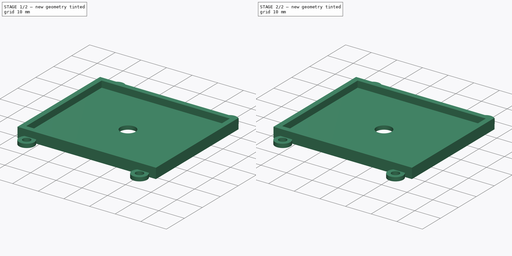
[diagram: build sequence overview — one tinted view per stage of 2, left to right]
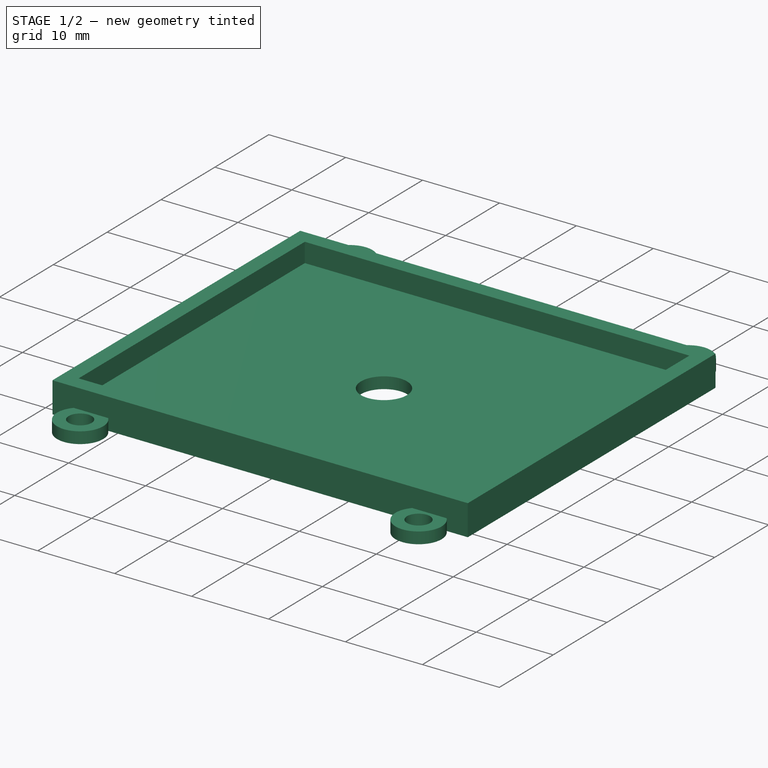
[diagram: stage 1 of 2 — iso view after this stage's code; geometry added in this stage tinted green]
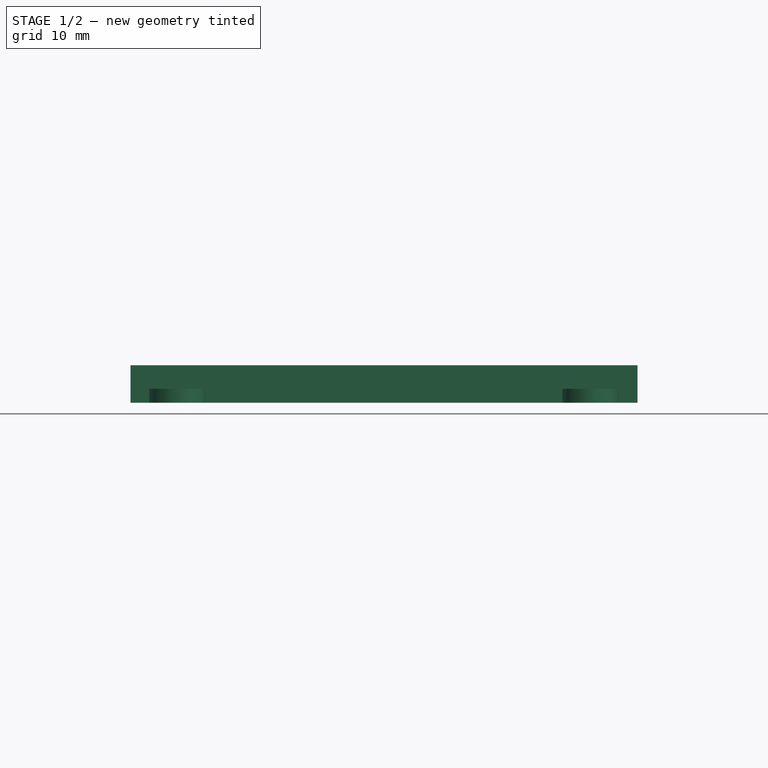
[diagram: stage 1 of 2 — front view after this stage's code; geometry added in this stage tinted green]
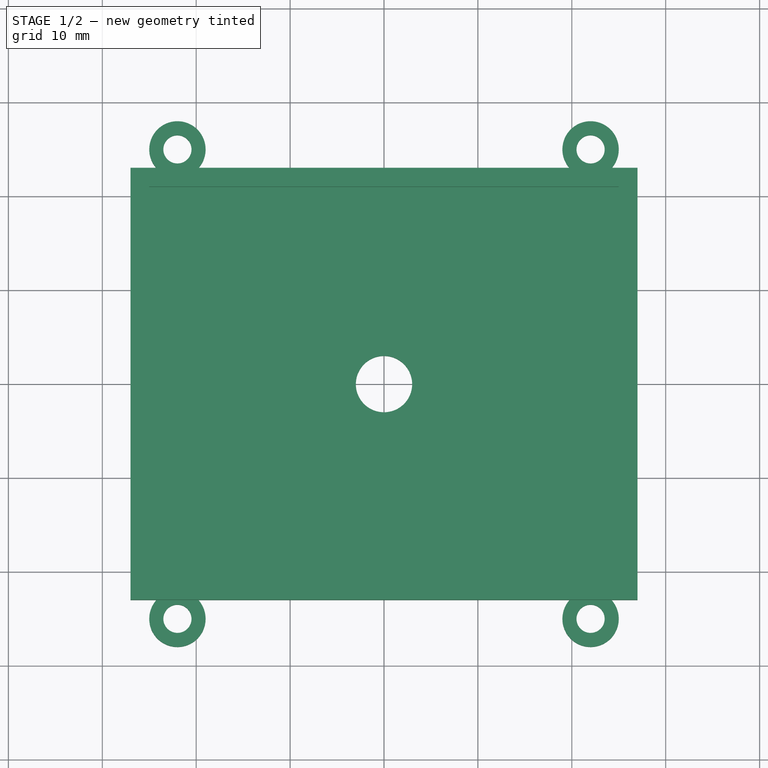
[diagram: stage 1 of 2 — top view after this stage's code; geometry added in this stage tinted green]
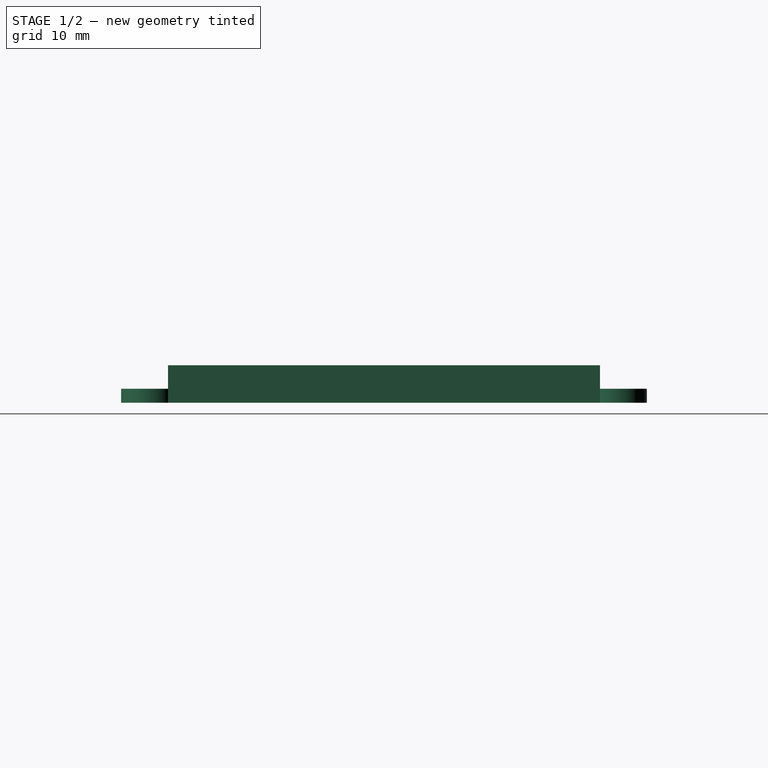
[diagram: stage 1 of 2 — right view after this stage's code; geometry added in this stage tinted green]
FCSTD DOCUMENT  (FreeCAD 0.18R16093 (Git))
Label: base_pantalla
License: All rights reserved
LicenseURL: http://en.wikipedia.org/wiki/All_rights_reserved
objects: Sketcher::SketchObject×2, Part::Extrusion×2, Part::Fuse×1
note: 5 computed .brp shape members not serialized (recipe doc carries the construction recipe); baked Part::Feature solids carry a one-line shape summary decoded from their .brp

FEATURE [Sketcher::SketchObject] Sketch  label="Paredes"
  Placement = pos=(0,0,1.5) rot=(0,0,1;0rad)
  sketch-geometry (8):
    g0: LineSegment StartX=-25 StartY=21 StartZ=0 EndX=25 EndY=21 EndZ=0
    g1: LineSegment StartX=25 StartY=21 StartZ=0 EndX=25 EndY=-21 EndZ=0
    g2: LineSegment StartX=25 StartY=-21 StartZ=0 EndX=-25 EndY=-21 EndZ=0
    g3: LineSegment StartX=-25 StartY=-21 StartZ=0 EndX=-25 EndY=21 EndZ=0
    g4: LineSegment StartX=-27 StartY=23 StartZ=0 EndX=27 EndY=23 EndZ=0
    g5: LineSegment StartX=27 StartY=23 StartZ=0 EndX=27 EndY=-23 EndZ=0
    g6: LineSegment StartX=27 StartY=-23 StartZ=0 EndX=-27 EndY=-23 EndZ=0
    g7: LineSegment StartX=-27 StartY=-23 StartZ=0 EndX=-27 EndY=23 EndZ=0
  constraints (24):
    c: Coincident(g0,g1)
    c: Coincident(g1,g2)
    c: Coincident(g2,g3)
    c: Coincident(g3,g0)
    c: Horizontal(g0)
    c: Horizontal(g2)
    c: Vertical(g1)
    c: Vertical(g3)
    c: Distance(g0) = 50
    c: Distance(g1) = 42
    c: Distance(g-1,g1) = 25
    c: Distance(g-1,g2) = 21
    c: Coincident(g4,g5)
    c: Coincident(g5,g6)
    c: Coincident(g6,g7)
    c: Coincident(g7,g4)
    c: Horizontal(g4)
    c: Horizontal(g6)
    c: Vertical(g5)
    c: Vertical(g7)
    c: Distance(g0,g4) = 2
    c: Distance(g1,g5) = 2
    c: Distance(g1,g6) = 2
    c: Distance(g2,g7) = 2
FEATURE [Sketcher::SketchObject] Sketch001  label="Base"
  ExternalGeometry = -> [Sketch]
  MapMode = 2
  Placement = pos=(0,0,1.5) rot=(0,0,1;0rad)
  Support = -> [Sketch]
  sketch-geometry (17):
    g0: LineSegment StartX=27 StartY=23 StartZ=0 EndX=27 EndY=-23 EndZ=0
    g1: LineSegment StartX=27 StartY=-23 StartZ=0 EndX=24.2361 EndY=-23 EndZ=0
    g2: LineSegment StartX=-27 StartY=-23 StartZ=0 EndX=-27 EndY=23 EndZ=0
    g3: ArcOfCircle CenterX=-22 CenterY=25 CenterZ=0 NormalX=0 NormalY=0 NormalZ=1 AngleXU=0 Radius=3 StartAngle=5.55346 EndAngle=10.1545
    g4: Circle CenterX=-22 CenterY=25 CenterZ=0 NormalX=0 NormalY=0 NormalZ=1 AngleXU=0 Radius=1.5
    g5: ArcOfCircle CenterX=22 CenterY=25 CenterZ=0 NormalX=0 NormalY=0 NormalZ=1 AngleXU=0 Radius=3 StartAngle=5.55346 EndAngle=10.1545
    g6: Circle CenterX=22 CenterY=25 CenterZ=0 NormalX=0 NormalY=0 NormalZ=1 AngleXU=0 Radius=1.5
    g7: ArcOfCircle CenterX=-22 CenterY=-25 CenterZ=0 NormalX=0 NormalY=0 NormalZ=1 AngleXU=0 Radius=3 StartAngle=2.41186 EndAngle=7.01291
    g8: Circle CenterX=-22 CenterY=-25 CenterZ=0 NormalX=0 NormalY=0 NormalZ=1 AngleXU=0 Radius=1.5
    g9: ArcOfCircle CenterX=22 CenterY=-25 CenterZ=0 NormalX=0 NormalY=0 NormalZ=1 AngleXU=0 Radius=3 StartAngle=2.41186 EndAngle=7.01291
    g10: Circle CenterX=22 CenterY=-25 CenterZ=0 NormalX=0 NormalY=0 NormalZ=1 AngleXU=0 Radius=1.5
    g11: Circle CenterX=0 CenterY=0 CenterZ=0 NormalX=0 NormalY=0 NormalZ=1 AngleXU=0 Radius=3
    g12: LineSegment StartX=-19.7639 StartY=23 StartZ=0 EndX=19.7639 EndY=23 EndZ=0
    g13: LineSegment StartX=-24.2361 StartY=23 StartZ=0 EndX=-27 EndY=23 EndZ=0
    g14: LineSegment StartX=24.2361 StartY=23 StartZ=0 EndX=27 EndY=23 EndZ=0
    g15: LineSegment StartX=19.7639 StartY=-23 StartZ=0 EndX=-19.7639 EndY=-23 EndZ=0
    g16: LineSegment StartX=-24.2361 StartY=-23 StartZ=0 EndX=-27 EndY=-23 EndZ=0
  constraints (45):
    c: Coincident(g13,g2)
    c: Coincident(g2,g-6)
    c: Radius(g4) = 1.5
    c: Radius(g3) = 3
    c: Radius(g6) = 1.5
    c: Radius(g5) = 3
    c: Radius(g11) = 3
    c: Radius(g10) = 1.5
    c: Radius(g9) = 3
    c: Radius(g7) = 3
    c: Radius(g8) = 1.5
    c: Distance(g3,g-7) = 4
    c: DistanceX(g2,g3) = 5
    c: Distance(g5,g-7) = 4
    c: DistanceX(g5,g0) = 5
    c: Coincident(g13,g3)
    c: Horizontal(g13)
    c: Horizontal(g12)
    c: Coincident(g0,g14)
    c: Coincident(g14,g5)
    c: Coincident(g0,g-4)
    c: Tangent(g15,g16)
    c: Coincident(g0,g1)
    c: Coincident(g1,g9)
    c: Coincident(g0,g-5)
    c: Coincident(g9,g15)
    c: Coincident(g9,g10)
    c: Distance(g9,g-10) = 4
    c: Horizontal(g1)
    c: DistanceX(g9,g0) = 5
    c: Horizontal(g15)
    c: Coincident(g8,g7)
    c: Distance(g7,g-10) = 4
    c: DistanceX(g16,g7) = 5
    c: Coincident(g16,g2)
    c: Coincident(g7,g16)
    c: Coincident(g2,g-6)
    c: Coincident(g7,g15)
    c: Coincident(g6,g5)
    c: Coincident(g11,g-1)
    c: Coincident(g5,g12)
    c: Coincident(g3,g12)
    c: Coincident(g3,g4)
    c: DistanceY(g3,g3) = 0
    c: Horizontal(g14)
FEATURE [Part::Extrusion] Extrude
  Base = -> Sketch001
  Dir = (0,0,1)
  DirMode = 2
  FaceMakerClass = Part::FaceMakerBullseye
  LengthFwd = 1.5
  LengthRev = 0
  Solid = true
  Symmetric = false
FEATURE [Part::Extrusion] Extrude001
  Base = -> Sketch
  Dir = (0,0,1)
  DirMode = 2
  FaceMakerClass = Part::FaceMakerBullseye
  LengthFwd = 4
  LengthRev = 0
  Solid = true
  Symmetric = false
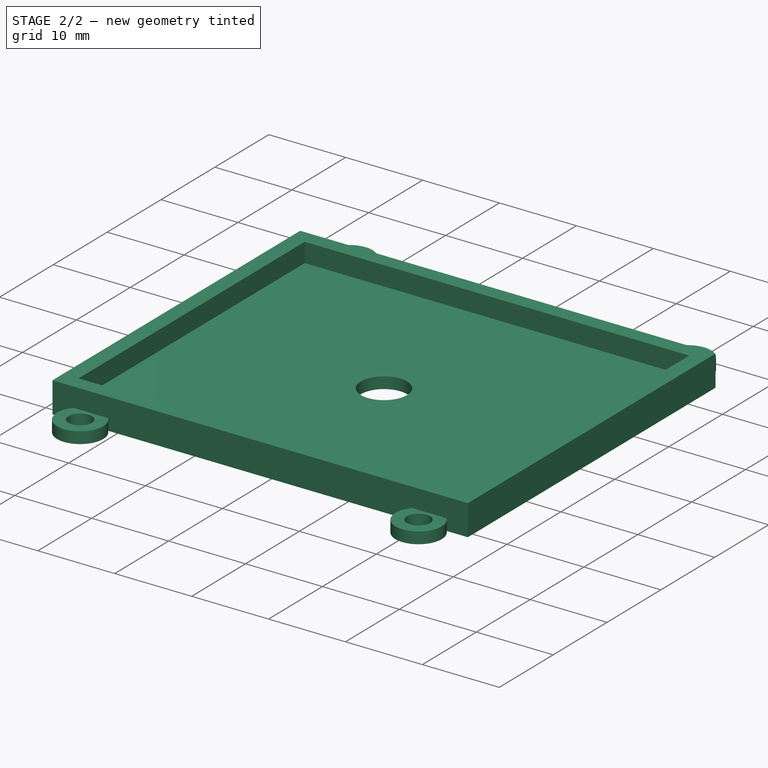
[diagram: stage 2 of 2 — iso view after this stage's code; geometry added in this stage tinted green]
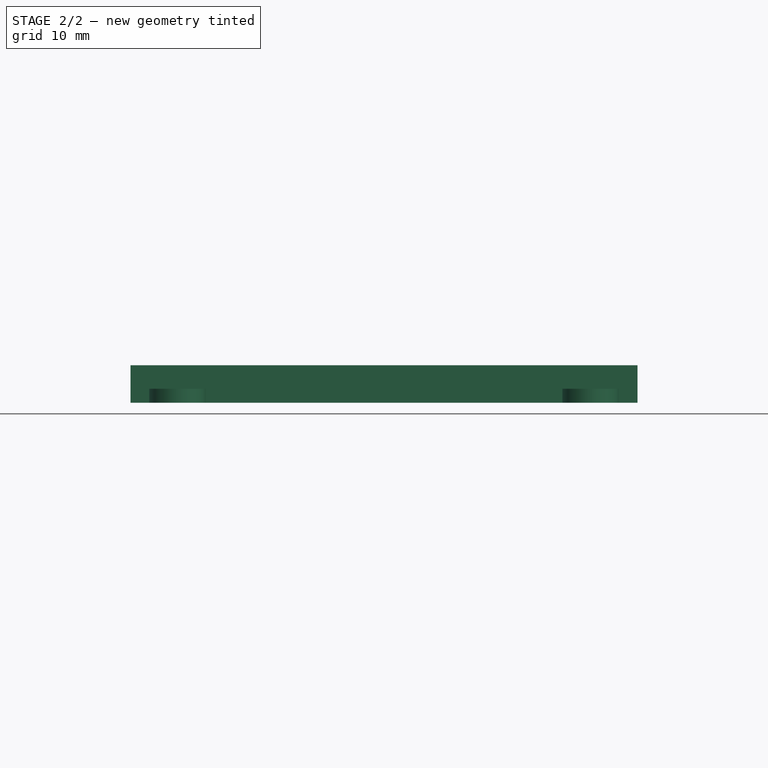
[diagram: stage 2 of 2 — front view after this stage's code; geometry added in this stage tinted green]
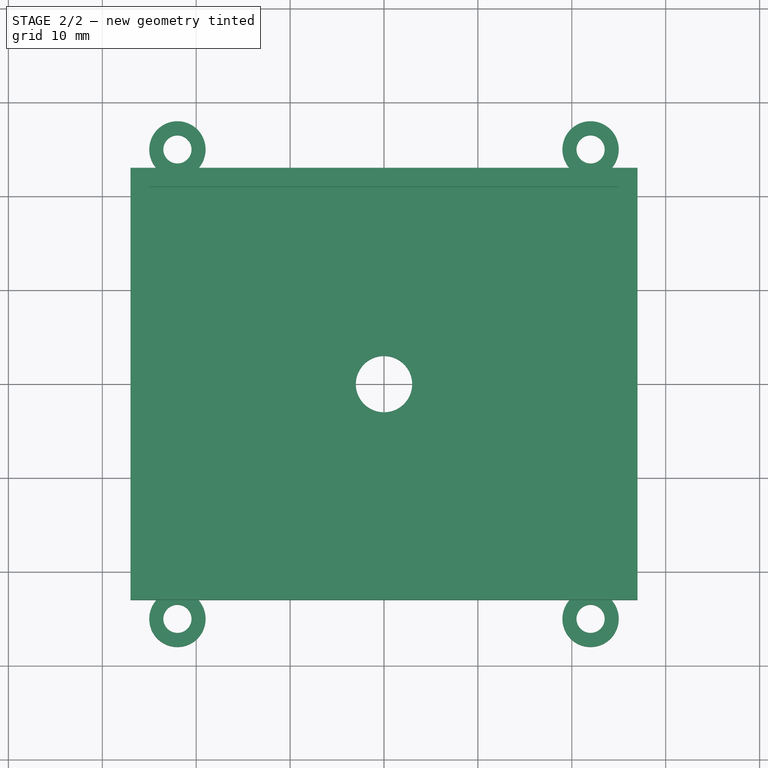
[diagram: stage 2 of 2 — top view after this stage's code; geometry added in this stage tinted green]
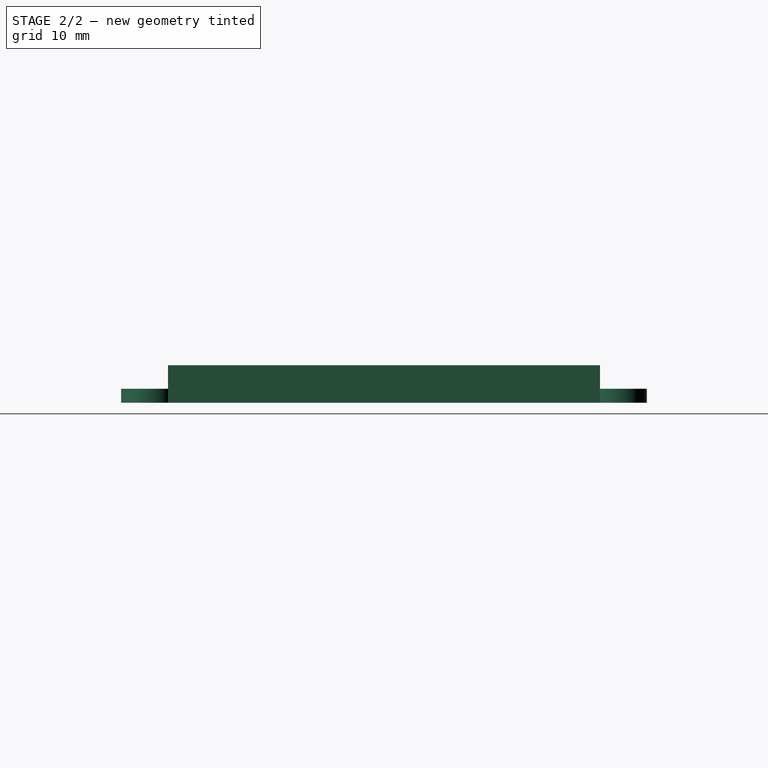
[diagram: stage 2 of 2 — right view after this stage's code; geometry added in this stage tinted green]
FEATURE [Part::Fuse] Fusion
  Base = -> Extrude
  Tool = -> Extrude001
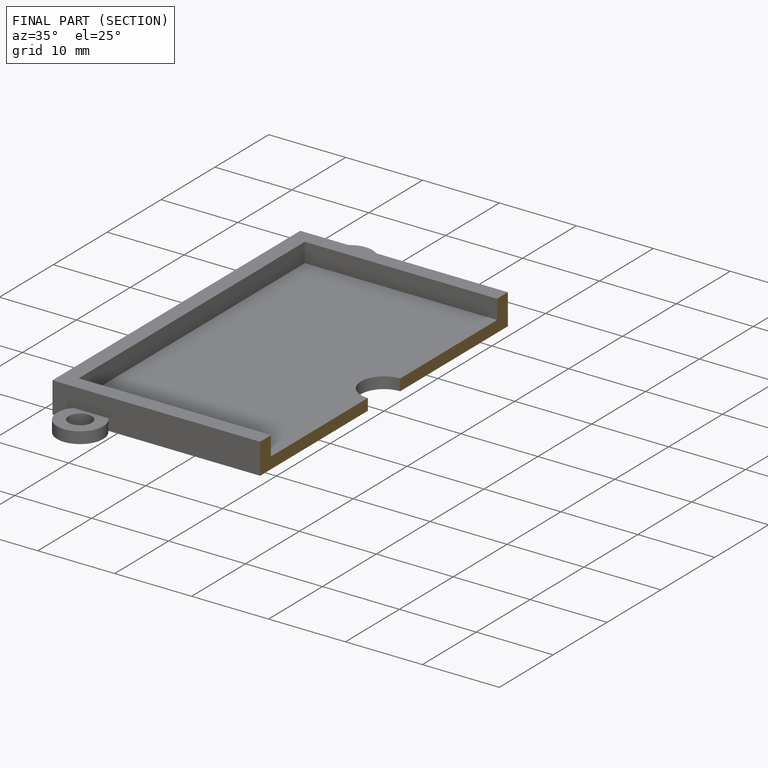
[diagram: finished part — half-section view (interior)]
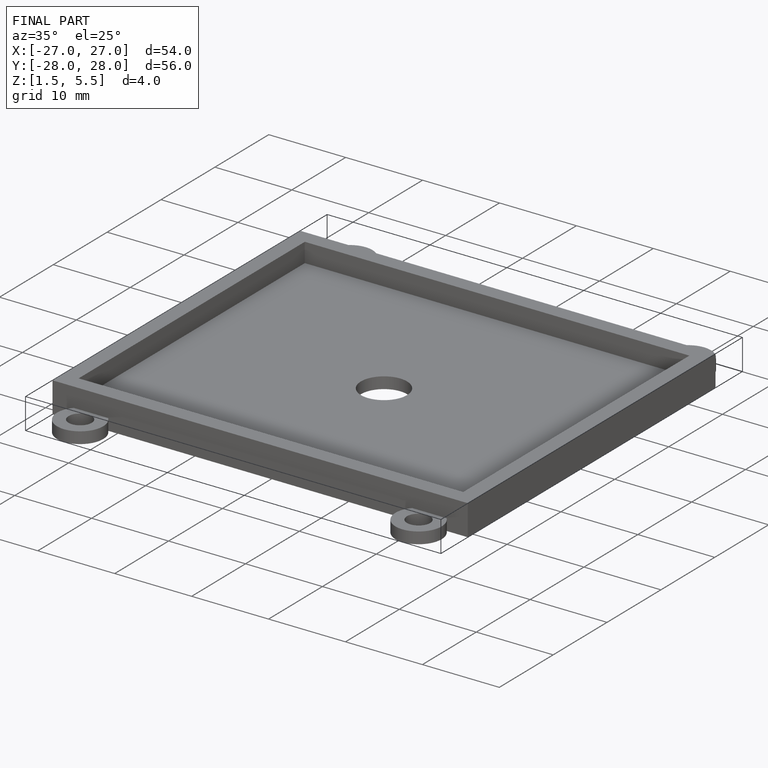
[diagram: finished part — iso view with bounding-box wireframe]
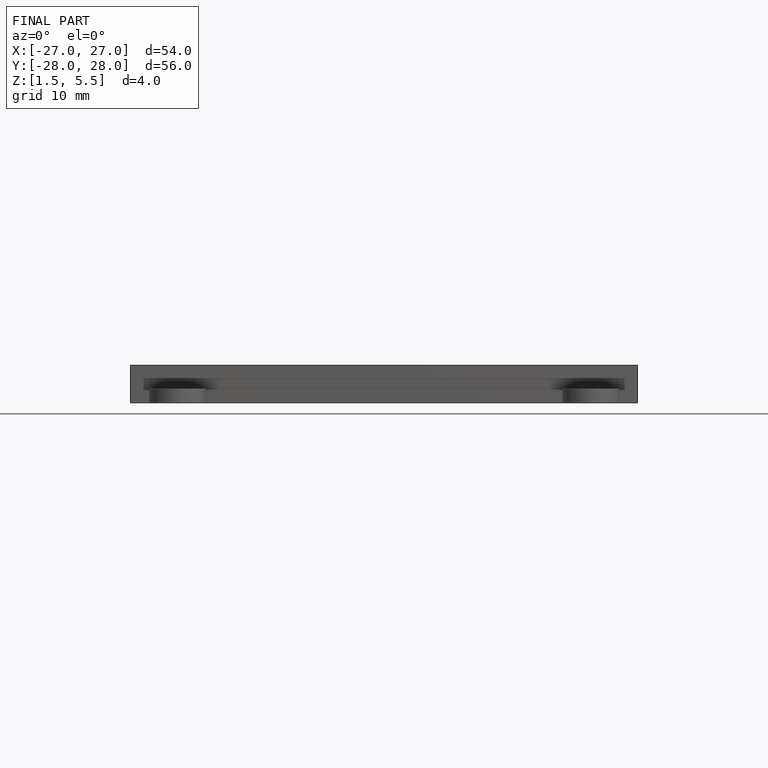
[diagram: finished part — front view with bounding-box wireframe]
